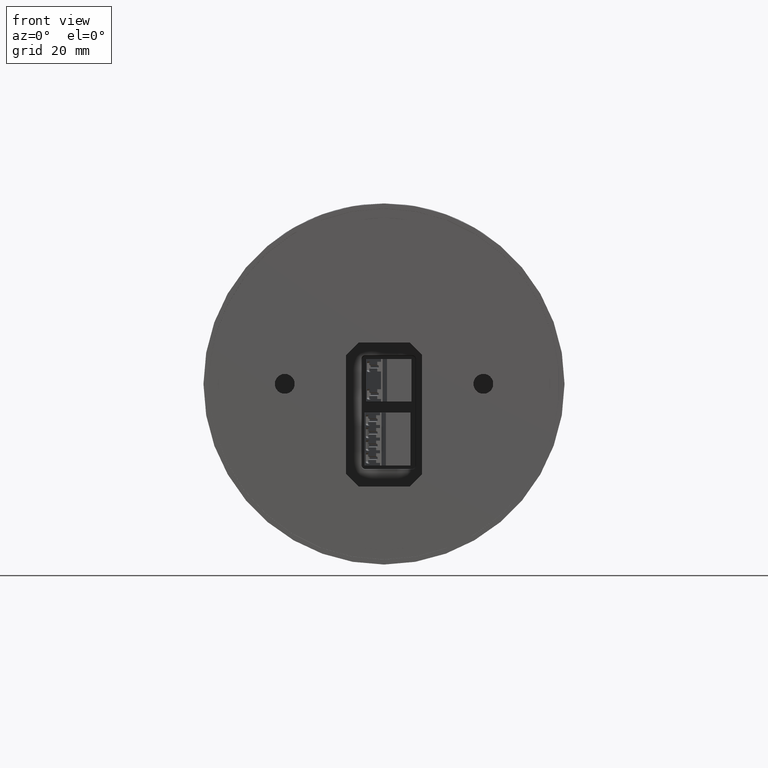
[diagram: clean part render]
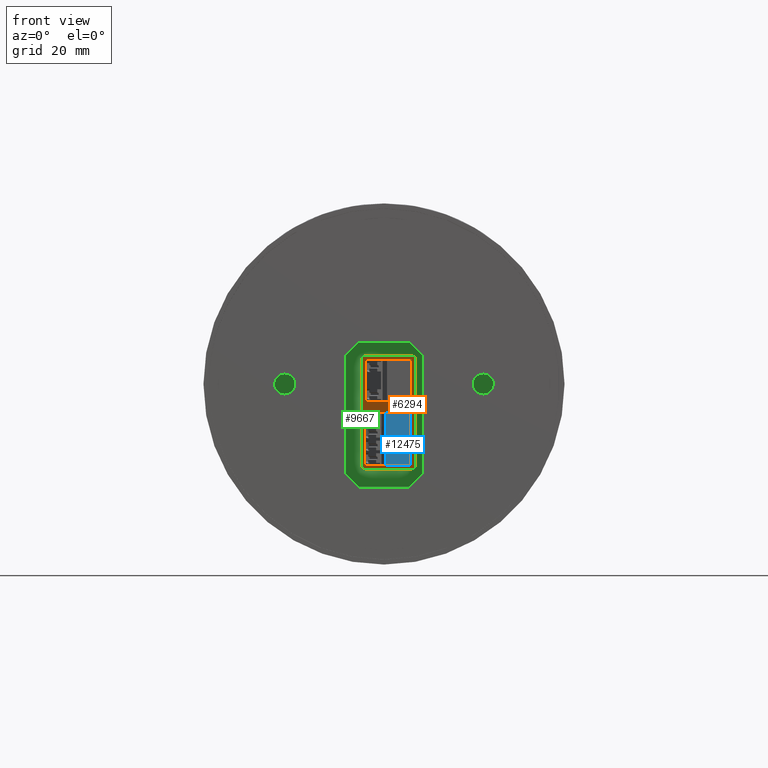
[diagram: same view with three faces highlighted in distinct colors, each labeled with its STEP entity id]
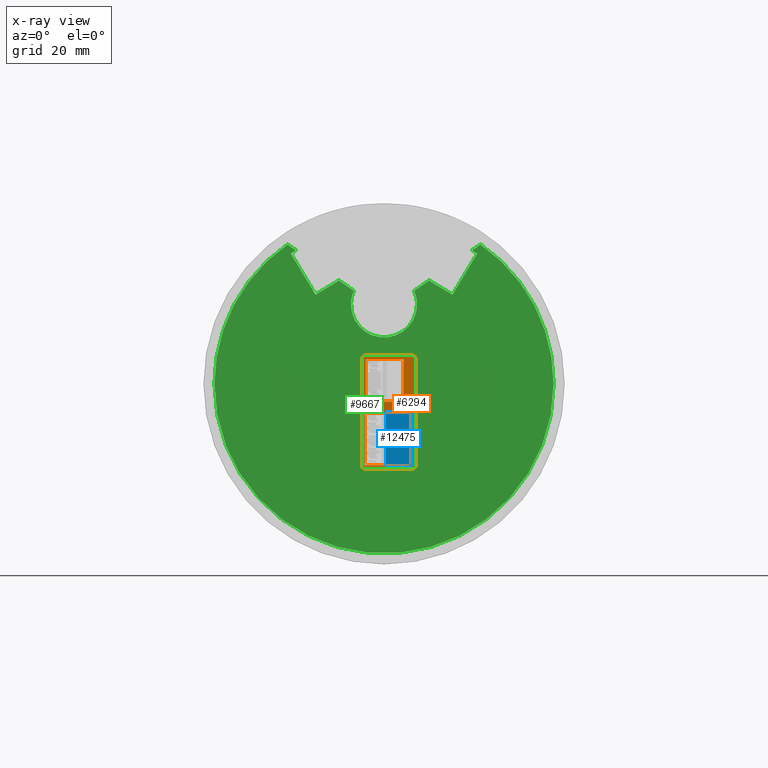
[diagram: x-ray of the same camera — body ghosted, the three highlighted faces saturated]
A machine part, front view with three faces highlighted in distinct colors.
The next image is the same camera in x-ray (body ghosted, the three faces saturated) — at least one of them is partly hidden behind the body in this view.
Their STEP definitions:

[orange] entity #6294 — the highlighted planar face has unit normal (0, -1, 0).
#173 = LINE ( 'NONE', #8453, #13082 ) ;
#302 = CARTESIAN_POINT ( 'NONE',  ( -6.119682230168980830, 23.49999400000000094, -22.52029140314990130 ) ) ;
#399 = ORIENTED_EDGE ( 'NONE', *, *, #11382, .T. ) ;
#406 = VERTEX_POINT ( 'NONE', #302 ) ;
#443 = DIRECTION ( 'NONE',  ( 1.000000000000000000, 0.000000000000000000, -8.105816544989190508E-16 ) ) ;
#446 =( BOUNDED_CURVE ( )  B_SPLINE_CURVE ( 3, ( #683, #5022, #8053, #11439 ),
 .UNSPECIFIED., .F., .T. ) 
 B_SPLINE_CURVE_WITH_KNOTS ( ( 4, 4 ),
 ( 2.356803477777964950, 3.926381829401630164 ),
 .UNSPECIFIED. ) 
 CURVE ( )  GEOMETRIC_REPRESENTATION_ITEM ( )  RATIONAL_B_SPLINE_CURVE ( ( 1.000000000000000000, 0.8050248461936609923, 0.8050248461936609923, 1.000000000000000000 ) ) 
 REPRESENTATION_ITEM ( '' )  );
#456 = CARTESIAN_POINT ( 'NONE',  ( 8.719682230168979586, 23.49999400000000094, -23.10586857305252195 ) ) ;
#506 = EDGE_LOOP ( 'NONE', ( #11335, #4915, #9680, #6970 ) ) ;
#592 = CARTESIAN_POINT ( 'NONE',  ( -3.798276963500004655, 23.49999400000000094, -4.909999995300010411 ) ) ;
#683 = CARTESIAN_POINT ( 'NONE',  ( -6.119682230168980830, 23.49999400000000094, -22.52029140314990130 ) ) ;
#714 = CARTESIAN_POINT ( 'NONE',  ( 7.720291403149889931, 23.49999400000000094, 7.819682230168989889 ) ) ;
#786 = CARTESIAN_POINT ( 'NONE',  ( 8.719682230168997350, 23.49999400000002225, 7.405868573052506676 ) ) ;
#845 = ORIENTED_EDGE ( 'NONE', *, *, #4101, .T. ) ;
#982 = CARTESIAN_POINT ( 'NONE',  ( -3.798276963500004655, 23.49999400000000094, 6.909999989900000195 ) ) ;
#1405 = LINE ( 'NONE', #10649, #4709 ) ;
#1528 = VECTOR ( 'NONE', #7857, 1000.000000000000000 ) ;
#1665 = CARTESIAN_POINT ( 'NONE',  ( -5.705868573052503834, 23.49999400000002225, 7.819682230168994330 ) ) ;
#1853 = CARTESIAN_POINT ( 'NONE',  ( 5.048997996695069546, 23.49999400000000094, -22.60999999579999908 ) ) ;
#1902 = DIRECTION ( 'NONE',  ( 0.000000000000000000, 0.000000000000000000, -1.000000000000000000 ) ) ;
#2018 = CARTESIAN_POINT ( 'NONE',  ( 8.719682230168979586, 23.49999400000000094, 6.820291403149890463 ) ) ;
#2036 = VERTEX_POINT ( 'NONE', #7683 ) ;
#2077 = ORIENTED_EDGE ( 'NONE', *, *, #9624, .T. ) ;
#2139 = CARTESIAN_POINT ( 'NONE',  ( 5.348997995583320453, 23.49999400000000094, 6.909999997475000377 ) ) ;
#2248 = CARTESIAN_POINT ( 'NONE',  ( 8.719682230168979586, 23.49999400000000094, 6.820291403149890463 ) ) ;
#2571 = LINE ( 'NONE', #13055, #3162 ) ;
#2602 = LINE ( 'NONE', #592, #6054 ) ;
#2671 = ORIENTED_EDGE ( 'NONE', *, *, #7076, .T. ) ;
#2739 = DIRECTION ( 'NONE',  ( 0.000000000000000000, 0.000000000000000000, -1.000000000000000000 ) ) ;
#2833 = ORIENTED_EDGE ( 'NONE', *, *, #8622, .T. ) ;
#2928 = CARTESIAN_POINT ( 'NONE',  ( 8.305868573052517689, 23.49999400000002225, 7.819682230168999659 ) ) ;
#2949 = VERTEX_POINT ( 'NONE', #7526 ) ;
#2967 = CARTESIAN_POINT ( 'NONE',  ( 7.720291403149889931, 23.49999400000000094, -23.51968223016899984 ) ) ;
#3120 = EDGE_CURVE ( 'NONE', #5631, #12001, #2571, .T. ) ;
#3162 = VECTOR ( 'NONE', #3604, 1000.000000000000000 ) ;
#3203 = EDGE_CURVE ( 'NONE', #4816, #6198, #11052, .T. ) ;
#3441 = CARTESIAN_POINT ( 'NONE',  ( -5.050003998654150728, 23.49999400000000094, -4.909999998825000489 ) ) ;
#3576 = DIRECTION ( 'NONE',  ( 0.000000000000000000, -1.000000000000000000, 0.000000000000000000 ) ) ;
#3604 = DIRECTION ( 'NONE',  ( 0.000000000000000000, 0.000000000000000000, -1.000000000000000000 ) ) ;
#3608 = LINE ( 'NONE', #3673, #9219 ) ;
#3640 = CARTESIAN_POINT ( 'NONE',  ( -32.50000000000000000, 23.49999400000000094, 16.10000000000000142 ) ) ;
#3649 = ORIENTED_EDGE ( 'NONE', *, *, #6929, .T. ) ;
#3656 = LINE ( 'NONE', #11109, #1528 ) ;
#3673 = CARTESIAN_POINT ( 'NONE',  ( -3.798276963500004655, 23.49999400000000094, -7.909999999499999213 ) ) ;
#3744 = CARTESIAN_POINT ( 'NONE',  ( -5.050003994616599989, 23.49999400000000094, -6.949999999999999289 ) ) ;
#3775 = FACE_OUTER_BOUND ( 'NONE', #6252, .T. ) ;
#3896 = DIRECTION ( 'NONE',  ( -1.000000000000000000, 0.000000000000000000, 0.000000000000000000 ) ) ;
#3933 = CARTESIAN_POINT ( 'NONE',  ( -5.120291403149890286, 23.49999400000000094, 7.819682230168989889 ) ) ;
#4100 = CARTESIAN_POINT ( 'NONE',  ( -5.120291403149890286, 23.49999400000000094, -23.51968223016895010 ) ) ;
#4101 = EDGE_CURVE ( 'NONE', #7596, #7804, #2602, .T. ) ;
#4120 = CARTESIAN_POINT ( 'NONE',  ( 8.305868573052496373, 23.49999400000000094, -23.51968223016896786 ) ) ;
#4277 = VERTEX_POINT ( 'NONE', #4100 ) ;
#4414 = CARTESIAN_POINT ( 'NONE',  ( -6.119682230168980830, 23.49999400000000094, 6.820291403149899345 ) ) ;
#4540 = VERTEX_POINT ( 'NONE', #6674 ) ;
#4561 = ORIENTED_EDGE ( 'NONE', *, *, #3203, .T. ) ;
#4600 = CARTESIAN_POINT ( 'NONE',  ( -5.350003997542399858, 23.49999400000000094, -7.909999999874999688 ) ) ;
#4635 = EDGE_CURVE ( 'NONE', #8047, #13354, #7258, .T. ) ;
#4709 = VECTOR ( 'NONE', #8582, 1000.000000000000000 ) ;
#4763 = ORIENTED_EDGE ( 'NONE', *, *, #13565, .T. ) ;
#4771 = DIRECTION ( 'NONE',  ( -1.182473768451757848E-16, 0.000000000000000000, 1.000000000000000000 ) ) ;
#4816 = VERTEX_POINT ( 'NONE', #11700 ) ;
#4915 = ORIENTED_EDGE ( 'NONE', *, *, #3120, .T. ) ;
#4932 = CARTESIAN_POINT ( 'NONE',  ( 8.719682230168988468, 23.49999400000000094, -22.52029140314990130 ) ) ;
#5022 = CARTESIAN_POINT ( 'NONE',  ( -6.119682230168987935, 23.49999400000005423, -23.10586857305252195 ) ) ;
#5139 = VERTEX_POINT ( 'NONE', #4600 ) ;
#5144 = VECTOR ( 'NONE', #4771, 1000.000000000000000 ) ;
#5578 = DIRECTION ( 'NONE',  ( 1.000000000000000000, 0.000000000000000000, 0.000000000000000000 ) ) ;
#5631 = VERTEX_POINT ( 'NONE', #9879 ) ;
#5806 = CARTESIAN_POINT ( 'NONE',  ( 8.719682230168979586, 23.49999400000000094, 6.820291403149890463 ) ) ;
#6054 = VECTOR ( 'NONE', #3896, 1000.000000000000000 ) ;
#6115 = CARTESIAN_POINT ( 'NONE',  ( 5.348997987982899716, 23.49999400000000094, -6.949999999999999289 ) ) ;
#6198 = VERTEX_POINT ( 'NONE', #2248 ) ;
#6252 = EDGE_LOOP ( 'NONE', ( #3649, #2671, #2077, #8757, #11494, #399, #9082, #4561 ) ) ;
#6271 = VECTOR ( 'NONE', #5578, 1000.000000000000000 ) ;
#6294 = ADVANCED_FACE ( 'NONE', ( #8040, #7902, #3775 ), #10949, .T. ) ;
#6309 = VECTOR ( 'NONE', #1902, 1000.000000000000000 ) ;
#6419 = ORIENTED_EDGE ( 'NONE', *, *, #4635, .T. ) ;
#6566 = EDGE_CURVE ( 'NONE', #9688, #406, #173, .T. ) ;
#6674 = CARTESIAN_POINT ( 'NONE',  ( -5.120291403149890286, 23.49999400000000094, 7.819682230168989889 ) ) ;
#6929 = EDGE_CURVE ( 'NONE', #6198, #2036, #12849, .T. ) ;
#6970 = ORIENTED_EDGE ( 'NONE', *, *, #8003, .T. ) ;
#7076 = EDGE_CURVE ( 'NONE', #2036, #4540, #1405, .T. ) ;
#7258 = LINE ( 'NONE', #982, #6271 ) ;
#7526 = CARTESIAN_POINT ( 'NONE',  ( -5.350003997542399858, 23.49999400000000094, -22.60999999579999908 ) ) ;
#7596 = VERTEX_POINT ( 'NONE', #9032 ) ;
#7683 = CARTESIAN_POINT ( 'NONE',  ( 7.720291403149889931, 23.49999400000000094, 7.819682230168989889 ) ) ;
#7804 = VERTEX_POINT ( 'NONE', #3441 ) ;
#7857 = DIRECTION ( 'NONE',  ( 0.000000000000000000, 0.000000000000000000, 1.000000000000000000 ) ) ;
#7873 = DIRECTION ( 'NONE',  ( 1.000000000000000000, 0.000000000000000000, 0.000000000000000000 ) ) ;
#7902 = FACE_BOUND ( 'NONE', #11907, .T. ) ;
#7920 =( BOUNDED_CURVE ( )  B_SPLINE_CURVE ( 3, ( #9363, #4120, #456, #4932 ),
 .UNSPECIFIED., .F., .F. ) 
 B_SPLINE_CURVE_WITH_KNOTS ( ( 4, 4 ),
 ( 2.356803477778000033, 3.926381829401670132 ),
 .UNSPECIFIED. ) 
 CURVE ( )  GEOMETRIC_REPRESENTATION_ITEM ( )  RATIONAL_B_SPLINE_CURVE ( ( 1.000000000000000000, 0.8050248461936609923, 0.8050248461936609923, 1.000000000000000000 ) ) 
 REPRESENTATION_ITEM ( '' )  );
#8003 = EDGE_CURVE ( 'NONE', #2949, #5139, #3656, .T. ) ;
#8040 = FACE_BOUND ( 'NONE', #506, .T. ) ;
#8047 = VERTEX_POINT ( 'NONE', #11239 ) ;
#8053 = CARTESIAN_POINT ( 'NONE',  ( -5.705868573052497617, 23.49999400000005423, -23.51968223016896786 ) ) ;
#8103 = EDGE_CURVE ( 'NONE', #406, #4277, #446, .T. ) ;
#8453 = CARTESIAN_POINT ( 'NONE',  ( -6.119682230168980830, 23.49999400000000094, -22.52029140314990130 ) ) ;
#8582 = DIRECTION ( 'NONE',  ( -1.000000000000000000, 0.000000000000000000, 1.350969424164864016E-16 ) ) ;
#8622 = EDGE_CURVE ( 'NONE', #7804, #8047, #13329, .T. ) ;
#8757 = ORIENTED_EDGE ( 'NONE', *, *, #6566, .T. ) ;
#9032 = CARTESIAN_POINT ( 'NONE',  ( 5.348997995583320453, 23.49999400000000094, -4.909999998825000489 ) ) ;
#9041 = CARTESIAN_POINT ( 'NONE',  ( -6.119682230168983494, 23.49999400000002225, 7.405868573052513781 ) ) ;
#9082 = ORIENTED_EDGE ( 'NONE', *, *, #12647, .T. ) ;
#9219 = VECTOR ( 'NONE', #7873, 1000.000000000000000 ) ;
#9308 = AXIS2_PLACEMENT_3D ( 'NONE', #3640, #3576, #2739 ) ;
#9363 = CARTESIAN_POINT ( 'NONE',  ( 7.720291403149889931, 23.49999400000000094, -23.51968223016899984 ) ) ;
#9431 = EDGE_CURVE ( 'NONE', #5139, #5631, #3608, .T. ) ;
#9481 = DIRECTION ( 'NONE',  ( -5.912368842258789240E-17, 0.000000000000000000, -1.000000000000000000 ) ) ;
#9570 = DIRECTION ( 'NONE',  ( -1.000000000000000000, 0.000000000000000000, 0.000000000000000000 ) ) ;
#9624 = EDGE_CURVE ( 'NONE', #4540, #9688, #13652, .T. ) ;
#9680 = ORIENTED_EDGE ( 'NONE', *, *, #12120, .T. ) ;
#9688 = VERTEX_POINT ( 'NONE', #4414 ) ;
#9713 = CARTESIAN_POINT ( 'NONE',  ( -3.798276963500004655, 23.49999400000000094, -22.60999998319999804 ) ) ;
#9879 = CARTESIAN_POINT ( 'NONE',  ( 5.048997996695069546, 23.49999400000000094, -7.909999999875010346 ) ) ;
#9952 = DIRECTION ( 'NONE',  ( 0.000000000000000000, 0.000000000000000000, 1.000000000000000000 ) ) ;
#10365 = VECTOR ( 'NONE', #9570, 1000.000000000000000 ) ;
#10649 = CARTESIAN_POINT ( 'NONE',  ( -5.120291403149890286, 23.49999400000000094, 7.819682230168989889 ) ) ;
#10949 = PLANE ( 'NONE',  #9308 ) ;
#11010 = VECTOR ( 'NONE', #9952, 1000.000000000000000 ) ;
#11052 = LINE ( 'NONE', #5806, #5144 ) ;
#11109 = CARTESIAN_POINT ( 'NONE',  ( -5.350003990169589940, 23.49999400000000094, -6.949999999999999289 ) ) ;
#11185 = CARTESIAN_POINT ( 'NONE',  ( -6.119682230168980830, 23.49999400000000094, 6.820291403149899345 ) ) ;
#11239 = CARTESIAN_POINT ( 'NONE',  ( -5.050003998654150728, 23.49999400000000094, 6.909999997475000377 ) ) ;
#11335 = ORIENTED_EDGE ( 'NONE', *, *, #9431, .T. ) ;
#11358 = LINE ( 'NONE', #6115, #6309 ) ;
#11382 = EDGE_CURVE ( 'NONE', #4277, #11984, #12225, .T. ) ;
#11439 = CARTESIAN_POINT ( 'NONE',  ( -5.120291403149890286, 23.49999400000000094, -23.51968223016895010 ) ) ;
#11494 = ORIENTED_EDGE ( 'NONE', *, *, #8103, .T. ) ;
#11698 = VECTOR ( 'NONE', #443, 1000.000000000000000 ) ;
#11700 = CARTESIAN_POINT ( 'NONE',  ( 8.719682230168988468, 23.49999400000000094, -22.52029140314990130 ) ) ;
#11907 = EDGE_LOOP ( 'NONE', ( #845, #2833, #6419, #4763 ) ) ;
#11984 = VERTEX_POINT ( 'NONE', #2967 ) ;
#12001 = VERTEX_POINT ( 'NONE', #1853 ) ;
#12034 = CARTESIAN_POINT ( 'NONE',  ( 7.720291403149889931, 23.49999400000000094, -23.51968223016899984 ) ) ;
#12120 = EDGE_CURVE ( 'NONE', #12001, #2949, #12750, .T. ) ;
#12225 = LINE ( 'NONE', #12034, #11698 ) ;
#12647 = EDGE_CURVE ( 'NONE', #11984, #4816, #7920, .T. ) ;
#12750 = LINE ( 'NONE', #9713, #10365 ) ;
#12849 =( BOUNDED_CURVE ( )  B_SPLINE_CURVE ( 3, ( #2018, #786, #2928, #714 ),
 .UNSPECIFIED., .F., .F. ) 
 B_SPLINE_CURVE_WITH_KNOTS ( ( 4, 4 ),
 ( 2.356803477777949851, 3.926381829401630164 ),
 .UNSPECIFIED. ) 
 CURVE ( )  GEOMETRIC_REPRESENTATION_ITEM ( )  RATIONAL_B_SPLINE_CURVE ( ( 1.000000000000000000, 0.8050248461936579947, 0.8050248461936579947, 1.000000000000000000 ) ) 
 REPRESENTATION_ITEM ( '' )  );
#13055 = CARTESIAN_POINT ( 'NONE',  ( 5.048997992429919535, 23.49999400000000094, -6.949999999999999289 ) ) ;
#13082 = VECTOR ( 'NONE', #9481, 1000.000000000000000 ) ;
#13329 = LINE ( 'NONE', #3744, #11010 ) ;
#13354 = VERTEX_POINT ( 'NONE', #2139 ) ;
#13565 = EDGE_CURVE ( 'NONE', #13354, #7596, #11358, .T. ) ;
#13652 =( BOUNDED_CURVE ( )  B_SPLINE_CURVE ( 3, ( #3933, #1665, #9041, #11185 ),
 .UNSPECIFIED., .F., .T. ) 
 B_SPLINE_CURVE_WITH_KNOTS ( ( 4, 4 ),
 ( 2.356803477777960065, 3.926381829401630164 ),
 .UNSPECIFIED. ) 
 CURVE ( )  GEOMETRIC_REPRESENTATION_ITEM ( )  RATIONAL_B_SPLINE_CURVE ( ( 1.000000000000000000, 0.8050248461936599931, 0.8050248461936599931, 1.000000000000000000 ) ) 
 REPRESENTATION_ITEM ( '' )  );

[blue] entity #12475 — the highlighted planar face has unit normal (0, -1, 0).
#58 = PLANE ( 'NONE',  #680 ) ;
#648 = VECTOR ( 'NONE', #13383, 1000.000000000000000 ) ;
#680 = AXIS2_PLACEMENT_3D ( 'NONE', #5227, #1022, #1093 ) ;
#1022 = DIRECTION ( 'NONE',  ( 0.000000000000000000, -1.000000000000000000, 0.000000000000000000 ) ) ;
#1028 = EDGE_CURVE ( 'NONE', #13005, #9035, #7998, .T. ) ;
#1093 = DIRECTION ( 'NONE',  ( 0.000000000000000000, 0.000000000000000000, -1.000000000000000000 ) ) ;
#1133 = CARTESIAN_POINT ( 'NONE',  ( 0.5316260013453200095, 10.59999999999999964, -7.910000000000000142 ) ) ;
#1670 = ORIENTED_EDGE ( 'NONE', *, *, #13474, .F. ) ;
#2316 = CARTESIAN_POINT ( 'NONE',  ( 7.349999999999999645, 10.59999999999999964, -7.910000000000000142 ) ) ;
#2502 = VECTOR ( 'NONE', #3141, 1000.000000000000000 ) ;
#2530 = VERTEX_POINT ( 'NONE', #2316 ) ;
#2865 = DIRECTION ( 'NONE',  ( -1.000000000000000000, 0.000000000000000000, 0.000000000000000000 ) ) ;
#3141 = DIRECTION ( 'NONE',  ( 0.000000000000000000, 0.000000000000000000, -1.000000000000000000 ) ) ;
#3894 = CARTESIAN_POINT ( 'NONE',  ( 0.9999979999999999425, 10.59999999999999964, -22.61000000000000298 ) ) ;
#3988 = DIRECTION ( 'NONE',  ( 1.000000000000000000, 0.000000000000000000, 0.000000000000000000 ) ) ;
#4520 = CARTESIAN_POINT ( 'NONE',  ( 7.349999999999999645, 10.59999999999999964, -15.25999999999999979 ) ) ;
#4898 = LINE ( 'NONE', #13448, #6968 ) ;
#5227 = CARTESIAN_POINT ( 'NONE',  ( 7.349999999999999645, 10.59999999999999964, -7.910000000000000142 ) ) ;
#5229 = EDGE_CURVE ( 'NONE', #7167, #9035, #11415, .T. ) ;
#5266 = ORIENTED_EDGE ( 'NONE', *, *, #1028, .T. ) ;
#5551 = LINE ( 'NONE', #4520, #2502 ) ;
#6715 = EDGE_CURVE ( 'NONE', #2530, #7167, #5551, .T. ) ;
#6840 = CARTESIAN_POINT ( 'NONE',  ( 7.349999999999999645, 10.59999999999999964, -22.61000000000000298 ) ) ;
#6935 = VECTOR ( 'NONE', #2865, 1000.000000000000000 ) ;
#6968 = VECTOR ( 'NONE', #3988, 1000.000000000000000 ) ;
#7167 = VERTEX_POINT ( 'NONE', #6840 ) ;
#7998 = LINE ( 'NONE', #12211, #648 ) ;
#8023 = CARTESIAN_POINT ( 'NONE',  ( 0.5316260013453200095, 10.59999999999999964, -22.61000000000000298 ) ) ;
#8327 = FACE_OUTER_BOUND ( 'NONE', #13587, .T. ) ;
#9035 = VERTEX_POINT ( 'NONE', #8023 ) ;
#9692 = ORIENTED_EDGE ( 'NONE', *, *, #6715, .F. ) ;
#11415 = LINE ( 'NONE', #3894, #6935 ) ;
#12211 = CARTESIAN_POINT ( 'NONE',  ( 0.5316259999999929375, 10.59999999999999964, -15.25999999999999979 ) ) ;
#12213 = ORIENTED_EDGE ( 'NONE', *, *, #5229, .F. ) ;
#12475 = ADVANCED_FACE ( 'NONE', ( #8327 ), #58, .T. ) ;
#13005 = VERTEX_POINT ( 'NONE', #1133 ) ;
#13383 = DIRECTION ( 'NONE',  ( 0.000000000000000000, 0.000000000000000000, -1.000000000000000000 ) ) ;
#13448 = CARTESIAN_POINT ( 'NONE',  ( 0.9999979999999999425, 10.59999999999999964, -7.910000000000000142 ) ) ;
#13474 = EDGE_CURVE ( 'NONE', #13005, #2530, #4898, .T. ) ;
#13587 = EDGE_LOOP ( 'NONE', ( #1670, #5266, #12213, #9692 ) ) ;

[green] entity #9667 — the highlighted planar face has unit normal (0, -1, 0).
#23 = EDGE_CURVE ( 'NONE', #1785, #11284, #11717, .T. ) ;
#37 = CARTESIAN_POINT ( 'NONE',  ( 21.34736377045681976, 18.19999940451927145, 28.69069098005243745 ) ) ;
#76 = PLANE ( 'NONE',  #8533 ) ;
#101 = CARTESIAN_POINT ( 'NONE',  ( 21.92124207504169320, 18.19999984654095471, 29.64477817166800122 ) ) ;
#137 = CARTESIAN_POINT ( 'NONE',  ( 8.852381154237628280, 18.19999999999999929, 6.952990327218540045 ) ) ;
#165 = CARTESIAN_POINT ( 'NONE',  ( 23.18925427739085521, 18.19999683517986355, 31.75435254934617291 ) ) ;
#235 = CARTESIAN_POINT ( 'NONE',  ( 20.32648396742256480, 18.20000194010543382, 26.99176631024883477 ) ) ;
#298 = ORIENTED_EDGE ( 'NONE', *, *, #1201, .F. ) ;
#334 = VERTEX_POINT ( 'NONE', #573 ) ;
#344 = CARTESIAN_POINT ( 'NONE',  ( 7.852990327218528854, 18.19999999999999929, -23.65238115423760235 ) ) ;
#361 = CARTESIAN_POINT ( 'NONE',  ( -13.53911052853240093, 18.19999999999999929, 28.01518636579680077 ) ) ;
#398 = CARTESIAN_POINT ( 'NONE',  ( 25.70635032459265190, 18.19999999999999929, 35.94027894503269493 ) ) ;
#475 = CARTESIAN_POINT ( 'NONE',  ( -19.94804117055045012, 18.19999999999999929, 26.36308647067199828 ) ) ;
#530 = CIRCLE ( 'NONE', #9549, 46.96945596273229739 ) ;
#562 = CARTESIAN_POINT ( 'NONE',  ( -18.97880101419805143, 18.19999999999999929, 24.75010854514399838 ) ) ;
#573 = CARTESIAN_POINT ( 'NONE',  ( -26.71172798787065261, 18.19999999999999929, 38.63435493621015127 ) ) ;
#584 = EDGE_LOOP ( 'NONE', ( #12557, #12262, #4042, #2920, #10702, #11428, #8997, #8022 ) ) ;
#798 = CARTESIAN_POINT ( 'NONE',  ( 12.00842285757649996, 18.19999999999999929, 28.36096847587889869 ) ) ;
#822 = CARTESIAN_POINT ( 'NONE',  ( -11.73743127329108482, 18.19998957392344252, 28.17155613865668329 ) ) ;
#870 = CARTESIAN_POINT ( 'NONE',  ( 9.234885732432594807, 18.20000590168481835, 26.41758154575246209 ) ) ;
#875 = CARTESIAN_POINT ( 'NONE',  ( 46.96945596273229739, 18.19999999999999929, 5.925591757886269678E-16 ) ) ;
#895 = CARTESIAN_POINT ( 'NONE',  ( -9.129645381259010151, 18.19999999999999929, 22.00000000000000000 ) ) ;
#914 = CARTESIAN_POINT ( 'NONE',  ( -6.252381154237619754, 18.19999999999999929, 6.952990327218540045 ) ) ;
#938 = VERTEX_POINT ( 'NONE', #4971 ) ;
#978 = CARTESIAN_POINT ( 'NONE',  ( 12.44953003593179908, 18.19999999999999929, 28.66925359543964902 ) ) ;
#1004 = CARTESIAN_POINT ( 'NONE',  ( -24.87317649246117668, 18.20015683995019273, 36.71360537823191805 ) ) ;
#1005 = CARTESIAN_POINT ( 'NONE',  ( 10.12126180004295684, 18.20000669497570911, 27.03994829642454434 ) ) ;
#1035 = VECTOR ( 'NONE', #3371, 1000.000000000000000 ) ;
#1048 = CARTESIAN_POINT ( 'NONE',  ( -5.252990327218530098, 18.19999999999999929, 7.952381154237629701 ) ) ;
#1067 = CARTESIAN_POINT ( 'NONE',  ( 21.14470741812474586, 18.20010708558275425, 28.35369744773529632 ) ) ;
#1074 = CARTESIAN_POINT ( 'NONE',  ( 9.137156504220838471, 18.19991235224022219, 26.34886402035087016 ) ) ;
#1136 = CARTESIAN_POINT ( 'NONE',  ( 23.22648389573767957, 18.20003432159354162, 31.81627517499103419 ) ) ;
#1201 = EDGE_CURVE ( 'NONE', #8429, #6571, #2161, .T. ) ;
#1203 = CARTESIAN_POINT ( 'NONE',  ( 23.37929238239128793, 18.19965885620706914, 32.07038084902463737 ) ) ;
#1269 = CARTESIAN_POINT ( 'NONE',  ( 20.98519106874522677, 18.19995500065758165, 28.08829687377727424 ) ) ;
#1326 =( BOUNDED_CURVE ( )  B_SPLINE_CURVE ( 3, ( #2642, #4574, #12154, #7671 ),
 .UNSPECIFIED., .F., .F. ) 
 B_SPLINE_CURVE_WITH_KNOTS ( ( 4, 4 ),
 ( 2.356803477777955180, 3.926381829401635049 ),
 .UNSPECIFIED. ) 
 CURVE ( )  GEOMETRIC_REPRESENTATION_ITEM ( )  RATIONAL_B_SPLINE_CURVE ( ( 1.000000000000000000, 0.8050248461936579947, 0.8050248461936579947, 1.000000000000000000 ) ) 
 REPRESENTATION_ITEM ( '' )  );
#1357 = VERTEX_POINT ( 'NONE', #2682 ) ;
#1361 = CARTESIAN_POINT ( 'NONE',  ( -25.78594801784174706, 18.19999999999999929, 36.07281636037829742 ) ) ;
#1435 = CARTESIAN_POINT ( 'NONE',  ( 25.54699091602680028, 18.19999999999999929, 35.67532191113510009 ) ) ;
#1448 = EDGE_CURVE ( 'NONE', #334, #1357, #5300, .T. ) ;
#1482 = CIRCLE ( 'NONE', #7632, 9.129645381259010151 ) ;
#1491 = EDGE_CURVE ( 'NONE', #10723, #11167, #10553, .T. ) ;
#1553 = B_SPLINE_CURVE_WITH_KNOTS ( 'NONE', 3,
 ( #11354, #4104, #7277, #6307, #9208, #1074, #13428, #7069, #6109, #5278, #11493, #12597, #870, #6244, #11289, #1897, #10253, #5076, #1005, #11558, #5213, #13358, #798 ),
 .UNSPECIFIED., .F., .F.,
 ( 4, 2, 2, 1, 1, 1, 1, 2, 2, 1, 1, 1, 2, 2, 4 ),
 ( 0.000000000000000000, 0.1249999999999381606, 0.1874999999999083788, 0.2187499999998941680, 0.2343749999998882561, 0.2421874999998848976, 0.2460937499998832323, 0.2480468749998823996, 0.2499999999998815392, 0.3749999999998945843, 0.4374999999999011346, 0.4687499999999036882, 0.4843749999999056310, 0.4999999999999076294, 1.000000000000000000 ),
 .UNSPECIFIED. ) ;
#1554 = VERTEX_POINT ( 'NONE', #2108 ) ;
#1598 = CARTESIAN_POINT ( 'NONE',  ( -17.89195342643084885, 18.19999999999999929, 25.40242704071130220 ) ) ;
#1612 = EDGE_CURVE ( 'NONE', #5709, #3339, #7420, .T. ) ;
#1614 = CARTESIAN_POINT ( 'NONE',  ( 23.96259144591836687, 18.20000006928351866, 33.04019190058254907 ) ) ;
#1743 = EDGE_CURVE ( 'NONE', #4671, #4177, #13516, .T. ) ;
#1756 = CARTESIAN_POINT ( 'NONE',  ( 19.23615329603159907, 18.19999999999999929, 25.17828683772854959 ) ) ;
#1785 = VERTEX_POINT ( 'NONE', #8031 ) ;
#1793 = CARTESIAN_POINT ( 'NONE',  ( 25.40545302592035171, 18.19999999999999929, 36.34240678865025131 ) ) ;
#1823 = EDGE_CURVE ( 'NONE', #2510, #1554, #9000, .T. ) ;
#1897 = CARTESIAN_POINT ( 'NONE',  ( 9.887684868954064399, 18.20000685557366182, 26.87610009070727202 ) ) ;
#1938 = DIRECTION ( 'NONE',  ( 1.000000000000000000, 0.000000000000000000, 0.000000000000000000 ) ) ;
#1988 = CARTESIAN_POINT ( 'NONE',  ( -9.421329962682143844, 18.20000743265729071, 26.54860789862032533 ) ) ;
#2007 = DIRECTION ( 'NONE',  ( 1.000000000000000000, 0.000000000000000000, 0.000000000000000000 ) ) ;
#2031 = B_SPLINE_CURVE_WITH_KNOTS ( 'NONE', 3,
 ( #1435, #9849, #398, #13027 ),
 .UNSPECIFIED., .F., .F.,
 ( 4, 4 ),
 ( 0.01844501143000585111, 0.01890879447683044973 ),
 .UNSPECIFIED. ) ;
#2072 = ORIENTED_EDGE ( 'NONE', *, *, #1743, .F. ) ;
#2074 = CARTESIAN_POINT ( 'NONE',  ( -6.252381154237622418, 18.19999999999998508, 7.538567497121151817 ) ) ;
#2095 = CARTESIAN_POINT ( 'NONE',  ( 20.35579589148701274, 18.19999048478171488, 27.04054138977603827 ) ) ;
#2108 = CARTESIAN_POINT ( 'NONE',  ( -6.252381154237619754, 18.19999999999999929, -22.65299032721849670 ) ) ;
#2126 = CARTESIAN_POINT ( 'NONE',  ( -25.13606015877754984, 18.19999999999999929, 34.99217742560114885 ) ) ;
#2157 = CARTESIAN_POINT ( 'NONE',  ( 21.53096678324541102, 18.19999944963057104, 28.99592636668199219 ) ) ;
#2161 = B_SPLINE_CURVE_WITH_KNOTS ( 'NONE', 3,
 ( #6463, #2126, #10543, #10683, #5101, #9302, #13527, #4062, #475, #13101 ),
 .UNSPECIFIED., .F., .F.,
 ( 4, 3, 3, 4 ),
 ( 0.000000000000000000, 0.003783016340228689996, 0.007566032686116370629, 0.01321139526648761921 ),
 .UNSPECIFIED. ) ;
#2203 = CARTESIAN_POINT ( 'NONE',  ( 8.438567497121145067, 18.20000000000000639, 7.952381154237641248 ) ) ;
#2216 = VECTOR ( 'NONE', #10122, 1000.000000000000000 ) ;
#2231 = CARTESIAN_POINT ( 'NONE',  ( 20.29889219547189327, 18.20000498727571170, 26.94585639913010056 ) ) ;
#2302 = CARTESIAN_POINT ( 'NONE',  ( 23.78333410237012657, 18.20005208656473172, 32.74215856654015511 ) ) ;
#2333 = CARTESIAN_POINT ( 'NONE',  ( 24.74301191096089880, 18.20008267556102410, 36.79968786356007371 ) ) ;
#2337 = VERTEX_POINT ( 'NONE', #9215 ) ;
#2373 = CARTESIAN_POINT ( 'NONE',  ( 23.19841509444422201, 18.19999919802717514, 31.76958965704156768 ) ) ;
#2444 = CARTESIAN_POINT ( 'NONE',  ( 23.94633845024617358, 18.20000083089360032, 33.01316842731264245 ) ) ;
#2510 = VERTEX_POINT ( 'NONE', #7624 ) ;
#2519 = CARTESIAN_POINT ( 'NONE',  ( 25.34880592572575608, 18.20089708987351429, 35.34580908894484708 ) ) ;
#2585 = ORIENTED_EDGE ( 'NONE', *, *, #7703, .F. ) ;
#2587 = CARTESIAN_POINT ( 'NONE',  ( 25.24421030923643983, 18.20073392708626869, 35.17185581788383075 ) ) ;
#2642 = CARTESIAN_POINT ( 'NONE',  ( -5.252990327218530098, 18.19999999999999929, -23.65238115423760235 ) ) ;
#2682 = CARTESIAN_POINT ( 'NONE',  ( -24.40644512719750026, 18.19999999999999929, 37.02226927866560402 ) ) ;
#2854 = VECTOR ( 'NONE', #7060, 1000.000000000000000 ) ;
#2875 = EDGE_CURVE ( 'NONE', #13379, #334, #530, .T. ) ;
#2890 = CIRCLE ( 'NONE', #9944, 46.96945596273229739 ) ;
#2917 = CARTESIAN_POINT ( 'NONE',  ( 12.99292816862575961, 18.19999999999999929, 28.34305128904674831 ) ) ;
#2920 = ORIENTED_EDGE ( 'NONE', *, *, #9352, .T. ) ;
#2963 = CARTESIAN_POINT ( 'NONE',  ( 8.438567497121132632, 18.20000000000000639, -23.65238115423763432 ) ) ;
#2966 = CARTESIAN_POINT ( 'NONE',  ( -11.22020190100203685, 18.19999213264537374, 27.80972311626868887 ) ) ;
#3013 = CARTESIAN_POINT ( 'NONE',  ( 19.23615329603159907, 18.19999999999999929, 25.17828683772854959 ) ) ;
#3029 = CARTESIAN_POINT ( 'NONE',  ( -9.644432443785351694, 18.20000777957098848, 26.70533228748556454 ) ) ;
#3098 = CARTESIAN_POINT ( 'NONE',  ( -8.842658258783632874, 18.19999999999998508, 26.14162761449336259 ) ) ;
#3103 = CARTESIAN_POINT ( 'NONE',  ( 24.40644660509195063, 18.20000000001035190, 37.02226830212210018 ) ) ;
#3124 = DIRECTION ( 'NONE',  ( 0.000000000000000000, 1.000000000000000000, 0.000000000000000000 ) ) ;
#3136 = CARTESIAN_POINT ( 'NONE',  ( 21.08664749304535491, 18.20010226388428975, 28.25711826077374411 ) ) ;
#3171 = DIRECTION ( 'NONE',  ( 0.000000000000000000, 0.000000000000000000, -1.000000000000000000 ) ) ;
#3199 = CARTESIAN_POINT ( 'NONE',  ( 23.21675357380090077, 18.20000862358894977, 31.80009109316365823 ) ) ;
#3254 = ORIENTED_EDGE ( 'NONE', *, *, #6485, .F. ) ;
#3270 = CARTESIAN_POINT ( 'NONE',  ( 23.56027610947553796, 18.19994739841039433, 32.37130871962307310 ) ) ;
#3293 = EDGE_CURVE ( 'NONE', #6004, #10127, #4978, .T. ) ;
#3339 = VERTEX_POINT ( 'NONE', #7439 ) ;
#3348 = CARTESIAN_POINT ( 'NONE',  ( 23.57419113293338597, 18.19999699367775392, 32.39444543285290479 ) ) ;
#3371 = DIRECTION ( 'NONE',  ( 1.000000000000000000, 0.000000000000000000, -6.938893903907230350E-16 ) ) ;
#3415 = CARTESIAN_POINT ( 'NONE',  ( 20.47861819813227058, 18.19992807700395687, 27.24493177106640118 ) ) ;
#3485 = CARTESIAN_POINT ( 'NONE',  ( 25.42461198063439554, 18.20055316351164976, 35.47185720949728704 ) ) ;
#3494 = VERTEX_POINT ( 'NONE', #11860 ) ;
#3540 = ORIENTED_EDGE ( 'NONE', *, *, #3293, .T. ) ;
#3560 = CARTESIAN_POINT ( 'NONE',  ( 25.54699091602680028, 18.19999999999999929, 35.67532191113510009 ) ) ;
#3562 = CIRCLE ( 'NONE', #10596, 46.96945596273229739 ) ;
#3681 = CARTESIAN_POINT ( 'NONE',  ( 26.08755547069245040, 18.19999999999999929, 38.19778923422214945 ) ) ;
#3696 = CARTESIAN_POINT ( 'NONE',  ( 12.44953003593179908, 18.19999999999999929, 28.66925359543964902 ) ) ;
#3810 = CARTESIAN_POINT ( 'NONE',  ( 24.83911785969175412, 18.19999999999999929, 37.32478937790094875 ) ) ;
#3944 = CARTESIAN_POINT ( 'NONE',  ( 15.16654780271749914, 18.19999999999999929, 27.03828721364720167 ) ) ;
#4042 = ORIENTED_EDGE ( 'NONE', *, *, #13500, .F. ) ;
#4062 = CARTESIAN_POINT ( 'NONE',  ( -20.91747761661524763, 18.19999999999999929, 27.97594645222579857 ) ) ;
#4080 = CARTESIAN_POINT ( 'NONE',  ( 13.53633022076150105, 18.19999999999999929, 28.01685551170020005 ) ) ;
#4103 = CARTESIAN_POINT ( 'NONE',  ( -25.33293929646489673, 18.20014433072318738, 36.39704016265478259 ) ) ;
#4104 = CARTESIAN_POINT ( 'NONE',  ( 8.560682870875943706, 18.20000000000000284, 25.94315774342666359 ) ) ;
#4110 = CARTESIAN_POINT ( 'NONE',  ( 19.15035575622010100, 18.19999999999999929, 25.03556882256654958 ) ) ;
#4132 = CARTESIAN_POINT ( 'NONE',  ( 24.55067208945594714, 18.19999999999999929, 37.12310618755899583 ) ) ;
#4144 = DIRECTION ( 'NONE',  ( 0.000000000000000000, 1.000000000000000000, 0.000000000000000000 ) ) ;
#4163 = CARTESIAN_POINT ( 'NONE',  ( 23.88120903320913513, 18.20001216816667267, 32.90488192432269443 ) ) ;
#4177 = VERTEX_POINT ( 'NONE', #13493 ) ;
#4195 = CARTESIAN_POINT ( 'NONE',  ( -12.08975535242186439, 18.20000000000000995, 28.41784240100378156 ) ) ;
#4211 = CARTESIAN_POINT ( 'NONE',  ( -46.96945596273229739, 18.19999999999999929, 6.351231274418415680E-15 ) ) ;
#4233 = CARTESIAN_POINT ( 'NONE',  ( 22.35746180507975822, 18.19999982687859585, 30.37034745077488651 ) ) ;
#4301 = CARTESIAN_POINT ( 'NONE',  ( 21.33942951918790953, 18.19999937999331507, 28.67749938512500307 ) ) ;
#4373 = CARTESIAN_POINT ( 'NONE',  ( 20.59467557972624263, 18.19982224337133303, 27.43813598622596217 ) ) ;
#4438 = ORIENTED_EDGE ( 'NONE', *, *, #11504, .F. ) ;
#4444 = CARTESIAN_POINT ( 'NONE',  ( 23.46031096675534044, 18.19969747602817378, 32.20509475675011402 ) ) ;
#4569 = B_SPLINE_CURVE_WITH_KNOTS ( 'NONE', 3,
 ( #3810, #10992, #3681, #11193 ),
 .UNSPECIFIED., .F., .F.,
 ( 4, 4 ),
 ( 0.000000000000000000, 0.002285088989321880284 ),
 .UNSPECIFIED. ) ;
#4574 = CARTESIAN_POINT ( 'NONE',  ( -5.838567497121144534, 18.20000000000002771, -23.65238115423760235 ) ) ;
#4586 = CARTESIAN_POINT ( 'NONE',  ( 23.96817405103187681, 18.19999999520378609, 33.04947402822176628 ) ) ;
#4622 = CARTESIAN_POINT ( 'NONE',  ( 8.852381154237628280, 18.19999999999999929, 2.327282651765434555E-15 ) ) ;
#4667 = CARTESIAN_POINT ( 'NONE',  ( 25.77673643890299715, 18.19999999999999929, 36.07940926145520422 ) ) ;
#4671 = VERTEX_POINT ( 'NONE', #4818 ) ;
#4818 = CARTESIAN_POINT ( 'NONE',  ( 12.00842285757649996, 18.19999999999999929, 28.36096847587889869 ) ) ;
#4971 = CARTESIAN_POINT ( 'NONE',  ( 26.71172853925980206, 18.19999999999999929, 38.63435455498054694 ) ) ;
#4978 = B_SPLINE_CURVE_WITH_KNOTS ( 'NONE', 3,
 ( #8480, #12693, #4132, #3103 ),
 .UNSPECIFIED., .F., .F.,
 ( 4, 4 ),
 ( 0.02883877942674484968, 0.02936672203856680041 ),
 .UNSPECIFIED. ) ;
#4989 = CARTESIAN_POINT ( 'NONE',  ( 18.97880101418605037, 18.19999999999999929, 24.75010854515139869 ) ) ;
#5026 = CARTESIAN_POINT ( 'NONE',  ( 8.852381154237624727, 18.20000000000000639, -23.23856749712113157 ) ) ;
#5049 = CARTESIAN_POINT ( 'NONE',  ( 14.07973608136306076, 18.19999999999999929, 27.69066607904614941 ) ) ;
#5076 = CARTESIAN_POINT ( 'NONE',  ( 10.08222687820782504, 18.20000675023478465, 27.01257149631126708 ) ) ;
#5101 = CARTESIAN_POINT ( 'NONE',  ( -23.18654073732805188, 18.19999999999999929, 31.75017392972394958 ) ) ;
#5168 = CARTESIAN_POINT ( 'NONE',  ( -10.52538393141804285, 18.20000637255089160, 27.32321250632598009 ) ) ;
#5207 = CARTESIAN_POINT ( 'NONE',  ( 23.31497786496223767, 18.19976891300644084, 31.96343593674932393 ) ) ;
#5213 = CARTESIAN_POINT ( 'NONE',  ( 10.75296928279253272, 18.20000528888154534, 27.48292797721135727 ) ) ;
#5248 = CARTESIAN_POINT ( 'NONE',  ( -4.592996408837750682E-44, 18.19999999999999929, 22.00000000000000000 ) ) ;
#5270 = CARTESIAN_POINT ( 'NONE',  ( 22.15486716827822988, 18.20000005507284868, 30.03332590738903818 ) ) ;
#5278 = CARTESIAN_POINT ( 'NONE',  ( 9.230350051721609717, 18.20000508218719659, 26.41439268170821109 ) ) ;
#5297 = CARTESIAN_POINT ( 'NONE',  ( 19.23615329603159907, 18.19999999999999929, 25.17828683772854959 ) ) ;
#5300 = B_SPLINE_CURVE_WITH_KNOTS ( 'NONE', 3,
 ( #9988, #8046, #6044, #7910 ),
 .UNSPECIFIED., .F., .F.,
 ( 4, 4 ),
 ( 0.02132507867180900157, 0.02413811070082984983 ),
 .UNSPECIFIED. ) ;
#5338 = CARTESIAN_POINT ( 'NONE',  ( 23.26692981817851802, 18.19990424955149066, 31.88353629189433747 ) ) ;
#5378 = EDGE_CURVE ( 'NONE', #10723, #10793, #6986, .T. ) ;
#5381 = CARTESIAN_POINT ( 'NONE',  ( 7.852990327218528854, 18.19999999999999929, 7.952381154237629701 ) ) ;
#5407 = CARTESIAN_POINT ( 'NONE',  ( 23.56744208123208040, 18.19997249100368819, 32.38322368506304372 ) ) ;
#5470 = CARTESIAN_POINT ( 'NONE',  ( 23.14630116897083667, 18.19999678298468027, 31.68290546657537377 ) ) ;
#5498 = ORIENTED_EDGE ( 'NONE', *, *, #10947, .F. ) ;
#5548 = EDGE_CURVE ( 'NONE', #6571, #7110, #10607, .T. ) ;
#5693 = CARTESIAN_POINT ( 'NONE',  ( 25.76744193931845217, 18.19999999999999929, 36.08606331649804844 ) ) ;
#5709 = VERTEX_POINT ( 'NONE', #1793 ) ;
#5774 = AXIS2_PLACEMENT_3D ( 'NONE', #5910, #6937, #9985 ) ;
#5824 = CARTESIAN_POINT ( 'NONE',  ( 24.48534263294572000, 18.20009930058828118, 33.90952257533393777 ) ) ;
#5834 = CARTESIAN_POINT ( 'NONE',  ( 12.00842285757649996, 18.19999999999999929, 28.36096847587889869 ) ) ;
#5910 = CARTESIAN_POINT ( 'NONE',  ( -4.592996408837750682E-44, 18.19999999999999929, 22.00000000000000000 ) ) ;
#5928 = VERTEX_POINT ( 'NONE', #7720 ) ;
#5971 = CARTESIAN_POINT ( 'NONE',  ( 19.49021465069795411, 18.20000000000001350, 25.60089956470213579 ) ) ;
#6004 = VERTEX_POINT ( 'NONE', #8955 ) ;
#6044 = CARTESIAN_POINT ( 'NONE',  ( -25.17492065394450407, 18.19999999999999929, 37.55956266585749859 ) ) ;
#6072 =( BOUNDED_CURVE ( )  B_SPLINE_CURVE ( 3, ( #13520, #5026, #2963, #9230 ),
 .UNSPECIFIED., .F., .T. ) 
 B_SPLINE_CURVE_WITH_KNOTS ( ( 4, 4 ),
 ( 2.356803477777955180, 3.926381829401630164 ),
 .UNSPECIFIED. ) 
 CURVE ( )  GEOMETRIC_REPRESENTATION_ITEM ( )  RATIONAL_B_SPLINE_CURVE ( ( 1.000000000000000000, 0.8050248461936589939, 0.8050248461936589939, 1.000000000000000000 ) ) 
 REPRESENTATION_ITEM ( '' )  );
#6084 = DIRECTION ( 'NONE',  ( 0.000000000000000000, 1.000000000000000000, 0.000000000000000000 ) ) ;
#6108 = CARTESIAN_POINT ( 'NONE',  ( -24.40644512719750026, 18.19999999999999929, 37.02226927866560402 ) ) ;
#6109 = CARTESIAN_POINT ( 'NONE',  ( 9.223136116424010211, 18.20000270667706843, 26.40932079099992791 ) ) ;
#6184 = CARTESIAN_POINT ( 'NONE',  ( 18.97880101418605037, 18.19999999999999929, 24.75010854515139869 ) ) ;
#6217 = DIRECTION ( 'NONE',  ( 1.000000000000000000, 0.000000000000000000, 0.000000000000000000 ) ) ;
#6244 = CARTESIAN_POINT ( 'NONE',  ( 9.388482363757159277, 18.20000684977502559, 26.52556851852415321 ) ) ;
#6274 = FACE_OUTER_BOUND ( 'NONE', #7716, .T. ) ;
#6281 = CARTESIAN_POINT ( 'NONE',  ( -5.838567497121141869, 18.19999999999998508, 7.952381154237632366 ) ) ;
#6300 = CARTESIAN_POINT ( 'NONE',  ( 23.57256270456009517, 18.19999100065784248, 32.39173782080126074 ) ) ;
#6307 = CARTESIAN_POINT ( 'NONE',  ( 8.990995324919863307, 18.19975250852075277, 26.24605648990700146 ) ) ;
#6331 = CARTESIAN_POINT ( 'NONE',  ( -10.20519961474338011, 18.20000836840934255, 27.09881578221229503 ) ) ;
#6332 = CARTESIAN_POINT ( 'NONE',  ( 25.40545302592035171, 18.19999999999999929, 36.34240678865025131 ) ) ;
#6371 = CARTESIAN_POINT ( 'NONE',  ( 21.36720799562879591, 18.19999946080939424, 28.72368400893489593 ) ) ;
#6435 = CARTESIAN_POINT ( 'NONE',  ( 21.20052313643352804, 18.20004812886610424, 28.44653071153369694 ) ) ;
#6463 = CARTESIAN_POINT ( 'NONE',  ( -25.78594801784174706, 18.19999999999999929, 36.07281636037829742 ) ) ;
#6485 = EDGE_CURVE ( 'NONE', #1357, #8429, #11303, .T. ) ;
#6504 = CARTESIAN_POINT ( 'NONE',  ( 23.84733030165009282, 18.20002483604398336, 32.84855598558507239 ) ) ;
#6526 = CARTESIAN_POINT ( 'NONE',  ( -5.252990327218530098, 18.19999999999999929, 7.952381154237629701 ) ) ;
#6528 = LINE ( 'NONE', #7366, #1035 ) ;
#6530 = CARTESIAN_POINT ( 'NONE',  ( 24.40644660509195063, 18.20000000001035190, 37.02226830212210018 ) ) ;
#6558 = CARTESIAN_POINT ( 'NONE',  ( -12.99432207138005957, 18.19999999999999929, 28.34221440532409986 ) ) ;
#6571 = VERTEX_POINT ( 'NONE', #8591 ) ;
#6573 = CARTESIAN_POINT ( 'NONE',  ( 22.37549212740901439, 18.19999978283442488, 30.40034527059015801 ) ) ;
#6766 = CARTESIAN_POINT ( 'NONE',  ( -15.17349110639644927, 18.19999999999999929, 27.03412758131190330 ) ) ;
#6841 = CARTESIAN_POINT ( 'NONE',  ( 8.314847861500531678, 18.19999999999999929, 25.77011005511029751 ) ) ;
#6889 = ORIENTED_EDGE ( 'NONE', *, *, #5378, .F. ) ;
#6937 = DIRECTION ( 'NONE',  ( 0.000000000000000000, -1.000000000000000000, 0.000000000000000000 ) ) ;
#6986 = B_SPLINE_CURVE_WITH_KNOTS ( 'NONE', 3,
 ( #1756, #5971, #10176, #7614, #10515, #12590, #11616, #11827, #2231, #235, #2095, #3415, #4373, #10652, #9410, #1269, #8379, #3136, #8585, #1067, #6435, #9613, #7337, #11684, #4301, #37, #6371, #11755, #2157, #11551, #101, #5270, #10722, #8513, #4233, #6573, #12791, #10581, #8660, #8447, #9474, #5470, #9687, #12655, #165, #2373, #3199, #1136, #7405, #5338, #5207, #1203, #4444, #9543, #12725, #3270, #5407, #13625, #6300, #3348, #7470, #7541, #12865, #2302, #6504, #4163, #10792, #2444, #12038, #1614, #9894, #4586, #8923, #5824, #10865, #13004, #2587, #11968, #11000, #2519, #3485, #10030, #3560 ),
 .UNSPECIFIED., .F., .F.,
 ( 4, 1, 1, 1, 2, 2, 1, 2, 2, 2, 2, 2, 1, 1, 2, 2, 1, 1, 2, 1, 1, 1, 2, 2, 1, 1, 1, 1, 2, 2, 2, 2, 2, 1, 1, 1, 1, 1, 1, 2, 2, 2, 2, 1, 1, 1, 1, 2, 2, 2, 1, 1, 2, 2, 4 ),
 ( 0.000000000000000000, 0.1250000000000371647, 0.1562500000000467404, 0.1640625000000491274, 0.1660156250000499045, 0.1679687500000506817, 0.1718750000000529021, 0.1875000000000600353, 0.2500000000000888734, 0.2812500000001038614, 0.2968750000001115774, 0.3046875000001149636, 0.3125000000001183498, 0.3281250000001250666, 0.3320312500001270650, 0.3339843750001283973, 0.3359375000001296740, 0.3437500000001353362, 0.3750000000001595390, 0.4375000000002073897, 0.4687500000002315925, 0.4843750000002441936, 0.4921875000002506884, 0.5000000000002571277, 0.5625000000003106404, 0.5937500000003368417, 0.6093750000003501643, 0.6171875000003559375, 0.6210937500003580469, 0.6250000000003602674, 0.6289062500003623768, 0.6328125000003645972, 0.6406250000003689271, 0.6562500000003754774, 0.6718750000003821388, 0.6796875000003860245, 0.6835937500003872458, 0.6855468750003880229, 0.6865234375003876899, 0.6870117187503880229, 0.6875000000003883560, 0.7187500000003560485, 0.7343750000003401723, 0.7421875000003321787, 0.7460937500003276268, 0.7480468750003255174, 0.7490234375003245182, 0.7495117187503240741, 0.7500000000003237410, 0.8750000000001640910, 0.9375000000000848210, 0.9531250000000653921, 0.9609375000000551781, 0.9687500000000449640, 1.000000000000000000 ),
 .UNSPECIFIED. ) ;
#7060 = DIRECTION ( 'NONE',  ( -5.507058653894628935E-17, 0.000000000000000000, -1.000000000000000000 ) ) ;
#7069 = CARTESIAN_POINT ( 'NONE',  ( 9.207762633261483032, 18.19999360264750976, 26.39851194603889084 ) ) ;
#7110 = VERTEX_POINT ( 'NONE', #8077 ) ;
#7113 = CARTESIAN_POINT ( 'NONE',  ( 18.43260189572779950, 18.19999999999999929, 25.07793352378320151 ) ) ;
#7164 = CARTESIAN_POINT ( 'NONE',  ( -9.186812572950339373, 18.20000643744028324, 26.38379089792609378 ) ) ;
#7213 = EDGE_CURVE ( 'NONE', #6004, #938, #4569, .T. ) ;
#7217 = CARTESIAN_POINT ( 'NONE',  ( 19.06457053962930104, 18.19999999999999929, 24.89284339791949563 ) ) ;
#7233 = CARTESIAN_POINT ( 'NONE',  ( -9.495518586294364738, 18.20000761316641302, 26.60073358544310196 ) ) ;
#7251 = CARTESIAN_POINT ( 'NONE',  ( -4.592996408837750682E-44, 18.19999999999999929, 22.00000000000000000 ) ) ;
#7266 = ORIENTED_EDGE ( 'NONE', *, *, #23, .F. ) ;
#7277 = CARTESIAN_POINT ( 'NONE',  ( 8.760420067542973754, 18.19983781201434780, 26.08377446158780089 ) ) ;
#7308 = EDGE_CURVE ( 'NONE', #13509, #11998, #11002, .T. ) ;
#7337 = CARTESIAN_POINT ( 'NONE',  ( 21.31907756551969157, 18.20000022987078125, 28.64366143971145817 ) ) ;
#7339 = EDGE_CURVE ( 'NONE', #2510, #10876, #9056, .T. ) ;
#7355 = ORIENTED_EDGE ( 'NONE', *, *, #10126, .F. ) ;
#7366 = CARTESIAN_POINT ( 'NONE',  ( -1.641213634040295011E-14, 18.19999999999999929, -23.65238115423760235 ) ) ;
#7405 = CARTESIAN_POINT ( 'NONE',  ( 23.25169817580613696, 18.19998352376428130, 31.85820795972484021 ) ) ;
#7420 = B_SPLINE_CURVE_WITH_KNOTS ( 'NONE', 3,
 ( #12875, #8594, #7622, #11979, #5693, #4667, #10875 ),
 .UNSPECIFIED., .F., .F.,
 ( 4, 3, 4 ),
 ( 0.006377031845972739796, 0.006809163926291059502, 0.006843456047628090205 ),
 .UNSPECIFIED. ) ;
#7439 = CARTESIAN_POINT ( 'NONE',  ( 25.78603179296240100, 18.19999999999999929, 36.07275640094350422 ) ) ;
#7470 = CARTESIAN_POINT ( 'NONE',  ( 23.60151276892002059, 18.20009811525335053, 32.43987352455457795 ) ) ;
#7541 = CARTESIAN_POINT ( 'NONE',  ( 23.64743480398409403, 18.20010943097010170, 32.51622216747561112 ) ) ;
#7556 = ORIENTED_EDGE ( 'NONE', *, *, #2875, .F. ) ;
#7573 = CARTESIAN_POINT ( 'NONE',  ( 25.07610435097467416, 18.20008050952203504, 36.57317019739374331 ) ) ;
#7614 = CARTESIAN_POINT ( 'NONE',  ( 20.16938202671168412, 18.20000518889108676, 26.73037952287152308 ) ) ;
#7622 = CARTESIAN_POINT ( 'NONE',  ( 25.64098793011000055, 18.19999999999999929, 36.17651672178335076 ) ) ;
#7624 = CARTESIAN_POINT ( 'NONE',  ( -6.252381154237619754, 18.19999999999999929, 6.952990327218540045 ) ) ;
#7632 = AXIS2_PLACEMENT_3D ( 'NONE', #5248, #13332, #1938 ) ;
#7637 = CARTESIAN_POINT ( 'NONE',  ( 25.54699091602680028, 18.19999999999999929, 35.67532191113510009 ) ) ;
#7671 = CARTESIAN_POINT ( 'NONE',  ( -6.252381154237619754, 18.19999999999999929, -22.65299032721849670 ) ) ;
#7703 = EDGE_CURVE ( 'NONE', #7110, #13509, #9736, .T. ) ;
#7716 = EDGE_LOOP ( 'NONE', ( #13414, #7556, #4438, #12164, #12506, #3540, #12151, #9344, #5498, #6889, #7737, #8917, #2072, #7355, #7266, #11931, #12017, #2585, #12800, #298, #3254 ) ) ;
#7720 = CARTESIAN_POINT ( 'NONE',  ( -5.252990327218530098, 18.19999999999999929, -23.65238115423760235 ) ) ;
#7724 = LINE ( 'NONE', #4622, #12540 ) ;
#7737 = ORIENTED_EDGE ( 'NONE', *, *, #1491, .T. ) ;
#7846 =( BOUNDED_CURVE ( )  B_SPLINE_CURVE ( 3, ( #5381, #2203, #10422, #137 ),
 .UNSPECIFIED., .F., .F. ) 
 B_SPLINE_CURVE_WITH_KNOTS ( ( 4, 4 ),
 ( 2.356803477777955180, 3.926381829401630164 ),
 .UNSPECIFIED. ) 
 CURVE ( )  GEOMETRIC_REPRESENTATION_ITEM ( )  RATIONAL_B_SPLINE_CURVE ( ( 1.000000000000000000, 0.8050248461936589939, 0.8050248461936589939, 1.000000000000000000 ) ) 
 REPRESENTATION_ITEM ( '' )  );
#7868 = VERTEX_POINT ( 'NONE', #11723 ) ;
#7871 = EDGE_CURVE ( 'NONE', #3494, #7868, #7724, .T. ) ;
#7910 = CARTESIAN_POINT ( 'NONE',  ( -24.40644512719750026, 18.19999999999999929, 37.02226927866560402 ) ) ;
#8022 = ORIENTED_EDGE ( 'NONE', *, *, #9828, .T. ) ;
#8031 = CARTESIAN_POINT ( 'NONE',  ( 9.129645381259010151, 18.19999999999999929, 22.00000000000000000 ) ) ;
#8046 = CARTESIAN_POINT ( 'NONE',  ( -25.94334682482159948, 18.19999999999999929, 38.09692662457554491 ) ) ;
#8077 = CARTESIAN_POINT ( 'NONE',  ( -12.44953758086145967, 18.19999999999999929, 28.66924905250815314 ) ) ;
#8109 = CARTESIAN_POINT ( 'NONE',  ( 9.196788185447699498E-16, 18.19999999999999929, 7.952381154237629701 ) ) ;
#8203 = CARTESIAN_POINT ( 'NONE',  ( -9.384302741838386197, 18.20000730835835157, 26.52258844473080401 ) ) ;
#8355 = CARTESIAN_POINT ( 'NONE',  ( 16.25337402608159820, 18.19999999999999929, 26.38593250710625071 ) ) ;
#8379 = CARTESIAN_POINT ( 'NONE',  ( 21.02501686677852177, 18.20000458856394232, 28.15457577422906255 ) ) ;
#8388 = B_SPLINE_CURVE_WITH_KNOTS ( 'NONE', 3,
 ( #978, #2917, #4080, #5049, #3944, #8355, #9254, #10159, #7113, #4989 ),
 .UNSPECIFIED., .F., .F.,
 ( 4, 3, 3, 4 ),
 ( 0.009506846581924971104, 0.01140821589857913924, 0.01521095453295129990, 0.01712203387283305067 ),
 .UNSPECIFIED. ) ;
#8429 = VERTEX_POINT ( 'NONE', #1361 ) ;
#8447 = CARTESIAN_POINT ( 'NONE',  ( 23.06209927700497886, 18.19999673268170071, 31.54283216870854645 ) ) ;
#8480 = CARTESIAN_POINT ( 'NONE',  ( 24.83911785969175412, 18.19999999999999929, 37.32478937790094875 ) ) ;
#8513 = CARTESIAN_POINT ( 'NONE',  ( 22.32356036300051727, 18.19999989551229191, 30.31394633136247307 ) ) ;
#8533 = AXIS2_PLACEMENT_3D ( 'NONE', #12561, #10694, #3171 ) ;
#8585 = CARTESIAN_POINT ( 'NONE',  ( 21.10805850396316075, 18.20015108293582884, 28.29273785015175235 ) ) ;
#8591 = CARTESIAN_POINT ( 'NONE',  ( -18.97880101419805143, 18.19999999999999929, 24.75010854514399838 ) ) ;
#8594 = CARTESIAN_POINT ( 'NONE',  ( 25.52342128096615070, 18.19999999999999929, 36.25974983219734327 ) ) ;
#8660 = CARTESIAN_POINT ( 'NONE',  ( 22.94496513209948674, 18.19999681720150519, 31.34794746649179586 ) ) ;
#8779 = CARTESIAN_POINT ( 'NONE',  ( -14.08390282754326073, 18.19999999999999929, 27.68816472659404937 ) ) ;
#8917 = ORIENTED_EDGE ( 'NONE', *, *, #11435, .F. ) ;
#8923 = CARTESIAN_POINT ( 'NONE',  ( 24.22414984760417767, 18.20000015070577248, 33.47508295582701976 ) ) ;
#8955 = CARTESIAN_POINT ( 'NONE',  ( 24.83911785969175412, 18.19999999999999929, 37.32478937790094875 ) ) ;
#8970 = CARTESIAN_POINT ( 'NONE',  ( -14.62869512628794055, 18.19999999999999929, 27.36114308755109903 ) ) ;
#8997 = ORIENTED_EDGE ( 'NONE', *, *, #11051, .F. ) ;
#9000 = LINE ( 'NONE', #9132, #2854 ) ;
#9011 = AXIS2_PLACEMENT_3D ( 'NONE', #7251, #11530, #6217 ) ;
#9056 =( BOUNDED_CURVE ( )  B_SPLINE_CURVE ( 3, ( #914, #2074, #6281, #1048 ),
 .UNSPECIFIED., .F., .T. ) 
 B_SPLINE_CURVE_WITH_KNOTS ( ( 4, 4 ),
 ( 2.356803477777955180, 3.926381829401630164 ),
 .UNSPECIFIED. ) 
 CURVE ( )  GEOMETRIC_REPRESENTATION_ITEM ( )  RATIONAL_B_SPLINE_CURVE ( ( 1.000000000000000000, 0.8050248461936599931, 0.8050248461936599931, 1.000000000000000000 ) ) 
 REPRESENTATION_ITEM ( '' )  );
#9132 = CARTESIAN_POINT ( 'NONE',  ( -6.252381154237619754, 18.19999999999999929, 2.671604949194354660E-15 ) ) ;
#9208 = CARTESIAN_POINT ( 'NONE',  ( 9.056367637249360669, 18.19981745756056668, 26.29204372508988996 ) ) ;
#9215 = CARTESIAN_POINT ( 'NONE',  ( 7.852990327218528854, 18.19999999999999929, 7.952381154237629701 ) ) ;
#9230 = CARTESIAN_POINT ( 'NONE',  ( 7.852990327218528854, 18.19999999999999929, -23.65238115423760235 ) ) ;
#9254 = CARTESIAN_POINT ( 'NONE',  ( 17.34021135712754713, 18.19999999999999929, 25.73359630733079939 ) ) ;
#9300 = CARTESIAN_POINT ( 'NONE',  ( -10.67090005245748863, 18.20000381842027437, 27.42516025768798116 ) ) ;
#9302 = CARTESIAN_POINT ( 'NONE',  ( -22.53676334934639769, 18.19999999999999929, 30.66946856124474863 ) ) ;
#9344 = ORIENTED_EDGE ( 'NONE', *, *, #1612, .T. ) ;
#9352 = EDGE_CURVE ( 'NONE', #5928, #1554, #1326, .T. ) ;
#9370 = CARTESIAN_POINT ( 'NONE',  ( -9.352600670323750975, 18.20000718058097533, 26.50030903413205507 ) ) ;
#9410 = CARTESIAN_POINT ( 'NONE',  ( 20.86941723656754277, 18.19984346329416880, 27.89559559394352917 ) ) ;
#9474 = CARTESIAN_POINT ( 'NONE',  ( 23.12099159542991700, 18.19999675922028359, 31.64080401294069134 ) ) ;
#9504 = CARTESIAN_POINT ( 'NONE',  ( -8.314853742433689021, 18.19999999999999929, 25.77009708488789741 ) ) ;
#9543 = CARTESIAN_POINT ( 'NONE',  ( 23.51735195959843949, 18.19981712111413330, 32.29993808102359765 ) ) ;
#9549 = AXIS2_PLACEMENT_3D ( 'NONE', #12711, #3124, #12639 ) ;
#9613 = CARTESIAN_POINT ( 'NONE',  ( 21.26862188932155817, 18.20000765904493889, 28.55977003779886303 ) ) ;
#9667 = ADVANCED_FACE ( 'NONE', ( #6274, #10556 ), #76, .T. ) ;
#9687 = CARTESIAN_POINT ( 'NONE',  ( 23.16318981197191462, 18.19999680121124541, 31.71099833462144701 ) ) ;
#9736 = B_SPLINE_CURVE_WITH_KNOTS ( 'NONE', 3,
 ( #12553, #4195, #822, #2966, #10412, #9300, #5168, #13524, #11314, #12485, #6331, #13449, #3029, #7233, #1988, #8203, #12617, #10541, #9370, #12419, #7164, #3098, #12349 ),
 .UNSPECIFIED., .F., .F.,
 ( 4, 2, 1, 1, 1, 2, 2, 1, 1, 1, 1, 1, 1, 2, 2, 4 ),
 ( 0.000000000000000000, 0.2499999999999593103, 0.3749999999999393818, 0.4374999999999290012, 0.4687499999999233946, 0.4843749999999205635, 0.4999999999999177325, 0.6249999999998894218, 0.6874999999998756550, 0.7187499999998683275, 0.7343749999998652189, 0.7421874999998637756, 0.7460937499998629985, 0.7480468749998622213, 0.7499999999998615552, 1.000000000000000000 ),
 .UNSPECIFIED. ) ;
#9828 = EDGE_CURVE ( 'NONE', #2337, #7868, #7846, .T. ) ;
#9849 = CARTESIAN_POINT ( 'NONE',  ( 25.62666874875684897, 18.19999999999999929, 35.80780155371310514 ) ) ;
#9894 = CARTESIAN_POINT ( 'NONE',  ( 23.96587320913314656, 18.20000000948095575, 33.04564844183638428 ) ) ;
#9910 = B_SPLINE_CURVE_WITH_KNOTS ( 'NONE', 3,
 ( #6332, #7573, #2333, #6530 ),
 .UNSPECIFIED., .F., .F.,
 ( 4, 4 ),
 ( 0.000000000000000000, 1.000000000000000000 ),
 .UNSPECIFIED. ) ;
#9944 = AXIS2_PLACEMENT_3D ( 'NONE', #12369, #4144, #12504 ) ;
#9964 = VERTEX_POINT ( 'NONE', #344 ) ;
#9985 = DIRECTION ( 'NONE',  ( 1.000000000000000000, 0.000000000000000000, 0.000000000000000000 ) ) ;
#9988 = CARTESIAN_POINT ( 'NONE',  ( -26.71172798787065261, 18.19999999999999929, 38.63435493621015127 ) ) ;
#10013 = CARTESIAN_POINT ( 'NONE',  ( -15.71829028158555275, 18.19999999999999929, 26.70711739815675045 ) ) ;
#10030 = CARTESIAN_POINT ( 'NONE',  ( 25.48562074628529217, 18.20027704005096680, 35.57329164382216646 ) ) ;
#10042 = CARTESIAN_POINT ( 'NONE',  ( 12.30248611090262045, 18.19999999999999929, 28.56650361866890009 ) ) ;
#10066 = DIRECTION ( 'NONE',  ( 0.000000000000000000, 0.000000000000000000, 1.000000000000000000 ) ) ;
#10122 = DIRECTION ( 'NONE',  ( -1.000000000000000000, 0.000000000000000000, 1.156482317317869999E-16 ) ) ;
#10126 = EDGE_CURVE ( 'NONE', #11284, #4671, #1553, .T. ) ;
#10127 = VERTEX_POINT ( 'NONE', #13498 ) ;
#10159 = CARTESIAN_POINT ( 'NONE',  ( 17.88640518455154904, 18.19999999999999929, 25.40576251330785240 ) ) ;
#10176 = CARTESIAN_POINT ( 'NONE',  ( 19.81630070699872093, 18.20000360688513297, 26.14304972648500680 ) ) ;
#10253 = CARTESIAN_POINT ( 'NONE',  ( 10.02373570245316436, 18.20000681235479689, 26.97154624125929701 ) ) ;
#10412 = CARTESIAN_POINT ( 'NONE',  ( -10.96440086611188569, 18.19999679089267275, 27.63070592686131732 ) ) ;
#10422 = CARTESIAN_POINT ( 'NONE',  ( 8.852381154237624727, 18.20000000000000639, 7.538567497121149152 ) ) ;
#10426 = EDGE_CURVE ( 'NONE', #3494, #9964, #6072, .T. ) ;
#10515 = CARTESIAN_POINT ( 'NONE',  ( 20.25831324759573704, 18.20000533064221671, 26.87833906370076775 ) ) ;
#10541 = CARTESIAN_POINT ( 'NONE',  ( -9.357882285255206156, 18.20000720319519516, 26.50402093546987814 ) ) ;
#10543 = CARTESIAN_POINT ( 'NONE',  ( -24.48619234847505055, 18.19999999999999929, 33.91152643264420163 ) ) ;
#10553 = B_SPLINE_CURVE_WITH_KNOTS ( 'NONE', 3,
 ( #3013, #4110, #7217, #6184 ),
 .UNSPECIFIED., .F., .F.,
 ( 4, 4 ),
 ( 0.000000000000000000, 0.0004995666573522929404 ),
 .UNSPECIFIED. ) ;
#10556 = FACE_BOUND ( 'NONE', #584, .T. ) ;
#10581 = CARTESIAN_POINT ( 'NONE',  ( 22.71327749693872278, 18.19999758562227754, 30.96240870253293309 ) ) ;
#10596 = AXIS2_PLACEMENT_3D ( 'NONE', #11467, #6084, #2007 ) ;
#10607 = B_SPLINE_CURVE_WITH_KNOTS ( 'NONE', 3,
 ( #562, #1598, #10850, #10013, #6766, #8970, #8779, #361, #6558, #11055 ),
 .UNSPECIFIED., .F., .F.,
 ( 4, 3, 3, 4 ),
 ( 0.000000000000000000, 0.003802737683334459808, 0.005708958082389939577, 0.007615178482400830444 ),
 .UNSPECIFIED. ) ;
#10652 = CARTESIAN_POINT ( 'NONE',  ( 20.79717068784267298, 18.19981860535000706, 27.77530686233059853 ) ) ;
#10683 = CARTESIAN_POINT ( 'NONE',  ( -23.83636654317615111, 18.19999999999999929, 32.83085018164075564 ) ) ;
#10694 = DIRECTION ( 'NONE',  ( 0.000000000000000000, -1.000000000000000000, 0.000000000000000000 ) ) ;
#10702 = ORIENTED_EDGE ( 'NONE', *, *, #1823, .F. ) ;
#10722 = CARTESIAN_POINT ( 'NONE',  ( 22.27278688587898259, 18.19999997925905078, 30.22947865550374758 ) ) ;
#10723 = VERTEX_POINT ( 'NONE', #5297 ) ;
#10792 = CARTESIAN_POINT ( 'NONE',  ( 23.92406889705450013, 18.20000324996314589, 32.97614181052043847 ) ) ;
#10793 = VERTEX_POINT ( 'NONE', #7637 ) ;
#10850 = CARTESIAN_POINT ( 'NONE',  ( -16.80511547459179766, 18.19999999999999929, 26.05476159145189996 ) ) ;
#10865 = CARTESIAN_POINT ( 'NONE',  ( 24.88645930599431466, 18.20038597420053250, 34.57676619486031200 ) ) ;
#10875 = CARTESIAN_POINT ( 'NONE',  ( 25.78603179296240100, 18.19999999999999929, 36.07275640094350422 ) ) ;
#10876 = VERTEX_POINT ( 'NONE', #6526 ) ;
#10947 = EDGE_CURVE ( 'NONE', #10793, #3339, #2031, .T. ) ;
#10992 = CARTESIAN_POINT ( 'NONE',  ( 25.46335269457924966, 18.19999999999999929, 37.76126638796895207 ) ) ;
#11000 = CARTESIAN_POINT ( 'NONE',  ( 25.33039242471642893, 18.20083009333488988, 35.31518569330790314 ) ) ;
#11002 = CIRCLE ( 'NONE', #9011, 9.129645381259010151 ) ;
#11011 = CARTESIAN_POINT ( 'NONE',  ( 12.15544918617821857, 18.19999999999999929, 28.46374362693105198 ) ) ;
#11051 = EDGE_CURVE ( 'NONE', #2337, #10876, #12130, .T. ) ;
#11055 = CARTESIAN_POINT ( 'NONE',  ( -12.44953758086145967, 18.19999999999999929, 28.66924905250815314 ) ) ;
#11167 = VERTEX_POINT ( 'NONE', #12860 ) ;
#11193 = CARTESIAN_POINT ( 'NONE',  ( 26.71172853925980206, 18.19999999999999929, 38.63435455498054694 ) ) ;
#11284 = VERTEX_POINT ( 'NONE', #6841 ) ;
#11289 = CARTESIAN_POINT ( 'NONE',  ( 9.617298481078979222, 18.20000677442555670, 26.68632421941615362 ) ) ;
#11303 = B_SPLINE_CURVE_WITH_KNOTS ( 'NONE', 3,
 ( #6108, #1004, #4103, #12526 ),
 .UNSPECIFIED., .F., .F.,
 ( 4, 4 ),
 ( 0.000000000000000000, 1.000000000000000000 ),
 .UNSPECIFIED. ) ;
#11314 = CARTESIAN_POINT ( 'NONE',  ( -10.42194360299960110, 18.20000748107426247, 27.25072625817040262 ) ) ;
#11354 = CARTESIAN_POINT ( 'NONE',  ( 8.314847861500531678, 18.19999999999999929, 25.77011005511029751 ) ) ;
#11428 = ORIENTED_EDGE ( 'NONE', *, *, #7339, .T. ) ;
#11435 = EDGE_CURVE ( 'NONE', #4177, #11167, #8388, .T. ) ;
#11467 = CARTESIAN_POINT ( 'NONE',  ( -4.592996408837750682E-44, 18.19999999999999929, 5.925591757886269678E-16 ) ) ;
#11493 = CARTESIAN_POINT ( 'NONE',  ( 9.233340415495559839, 18.20000560831631731, 26.41649509212830083 ) ) ;
#11504 = EDGE_CURVE ( 'NONE', #13578, #13379, #2890, .T. ) ;
#11530 = DIRECTION ( 'NONE',  ( 0.000000000000000000, -1.000000000000000000, 0.000000000000000000 ) ) ;
#11551 = CARTESIAN_POINT ( 'NONE',  ( 21.72481350111834075, 18.19999945429504606, 29.31819207089360191 ) ) ;
#11558 = CARTESIAN_POINT ( 'NONE',  ( 10.14183881770927975, 18.20000665816239760, 27.05437870836996339 ) ) ;
#11564 = EDGE_CURVE ( 'NONE', #938, #13578, #3562, .T. ) ;
#11616 = CARTESIAN_POINT ( 'NONE',  ( 20.28801504310571246, 18.20000535309704048, 26.92775814917582977 ) ) ;
#11684 = CARTESIAN_POINT ( 'NONE',  ( 21.33432370990415805, 18.19999936389119455, 28.66901033682145084 ) ) ;
#11717 = CIRCLE ( 'NONE', #5774, 9.129645381259010151 ) ;
#11723 = CARTESIAN_POINT ( 'NONE',  ( 8.852381154237628280, 18.19999999999999929, 6.952990327218540045 ) ) ;
#11755 = CARTESIAN_POINT ( 'NONE',  ( 21.45073406415868789, 18.19999959934287048, 28.86254963607798985 ) ) ;
#11827 = CARTESIAN_POINT ( 'NONE',  ( 20.29071757764594963, 18.20000535375109862, 26.93225482702319695 ) ) ;
#11860 = CARTESIAN_POINT ( 'NONE',  ( 8.852381154237628280, 18.19999999999999929, -22.65299032721849670 ) ) ;
#11931 = ORIENTED_EDGE ( 'NONE', *, *, #13294, .F. ) ;
#11968 = CARTESIAN_POINT ( 'NONE',  ( 25.29588995152382225, 18.20079124707204699, 35.25780558474838244 ) ) ;
#11979 = CARTESIAN_POINT ( 'NONE',  ( 25.75814477207464748, 18.19999999999999929, 36.09271364290499662 ) ) ;
#11998 = VERTEX_POINT ( 'NONE', #895 ) ;
#12017 = ORIENTED_EDGE ( 'NONE', *, *, #7308, .F. ) ;
#12038 = CARTESIAN_POINT ( 'NONE',  ( 23.95768388990654074, 18.20000020466745383, 33.03203219179123096 ) ) ;
#12116 = EDGE_CURVE ( 'NONE', #5709, #10127, #9910, .T. ) ;
#12130 = LINE ( 'NONE', #8109, #2216 ) ;
#12151 = ORIENTED_EDGE ( 'NONE', *, *, #12116, .F. ) ;
#12154 = CARTESIAN_POINT ( 'NONE',  ( -6.252381154237637517, 18.20000000000002771, -23.23856749712116354 ) ) ;
#12164 = ORIENTED_EDGE ( 'NONE', *, *, #11564, .F. ) ;
#12262 = ORIENTED_EDGE ( 'NONE', *, *, #10426, .T. ) ;
#12349 = CARTESIAN_POINT ( 'NONE',  ( -8.314853742433689021, 18.19999999999999929, 25.77009708488789741 ) ) ;
#12369 = CARTESIAN_POINT ( 'NONE',  ( -4.592996408837750682E-44, 18.19999999999999929, 5.925591757886269678E-16 ) ) ;
#12419 = CARTESIAN_POINT ( 'NONE',  ( -9.348574219929778550, 18.20000716279767161, 26.49747921193749178 ) ) ;
#12485 = CARTESIAN_POINT ( 'NONE',  ( -10.40262737890802214, 18.20000761620375584, 27.23718891411371956 ) ) ;
#12504 = DIRECTION ( 'NONE',  ( 1.000000000000000000, 0.000000000000000000, 0.000000000000000000 ) ) ;
#12506 = ORIENTED_EDGE ( 'NONE', *, *, #7213, .F. ) ;
#12526 = CARTESIAN_POINT ( 'NONE',  ( -25.78594801784174706, 18.19999999999999929, 36.07281636037829742 ) ) ;
#12540 = VECTOR ( 'NONE', #10066, 1000.000000000000000 ) ;
#12553 = CARTESIAN_POINT ( 'NONE',  ( -12.44953758086145967, 18.19999999999999929, 28.66924905250815314 ) ) ;
#12557 = ORIENTED_EDGE ( 'NONE', *, *, #7871, .F. ) ;
#12561 = CARTESIAN_POINT ( 'NONE',  ( 12.00842285757649996, 18.19999999999999929, 28.36096847587889869 ) ) ;
#12590 = CARTESIAN_POINT ( 'NONE',  ( 20.27952657578369866, 18.20000534766142408, 26.91363457934651393 ) ) ;
#12597 = CARTESIAN_POINT ( 'NONE',  ( 9.235311474405969889, 18.20000584701224255, 26.41788086415650838 ) ) ;
#12617 = CARTESIAN_POINT ( 'NONE',  ( -9.365805905924030839, 18.20000723633335582, 26.50958956187955806 ) ) ;
#12639 = DIRECTION ( 'NONE',  ( 1.000000000000000000, 0.000000000000000000, 0.000000000000000000 ) ) ;
#12655 = CARTESIAN_POINT ( 'NONE',  ( 23.17094944904534870, 18.19999681059906749, 31.72390555936686241 ) ) ;
#12693 = CARTESIAN_POINT ( 'NONE',  ( 24.69489583125810128, 18.19999999999999929, 37.22394656004055236 ) ) ;
#12711 = CARTESIAN_POINT ( 'NONE',  ( -4.592996408837750682E-44, 18.19999999999999929, 5.925591757886269678E-16 ) ) ;
#12725 = CARTESIAN_POINT ( 'NONE',  ( 23.54595440521930172, 18.19990011036717803, 32.34749581384841122 ) ) ;
#12791 = CARTESIAN_POINT ( 'NONE',  ( 22.51904156854365624, 18.19999928371337106, 30.63918000969103161 ) ) ;
#12800 = ORIENTED_EDGE ( 'NONE', *, *, #5548, .F. ) ;
#12860 = CARTESIAN_POINT ( 'NONE',  ( 18.97880101418605037, 18.19999999999999929, 24.75010854515139869 ) ) ;
#12865 = CARTESIAN_POINT ( 'NONE',  ( 23.74568324091318416, 18.20007263414413146, 32.67956321553030108 ) ) ;
#12875 = CARTESIAN_POINT ( 'NONE',  ( 25.40545302592035171, 18.19999999999999929, 36.34240678865025131 ) ) ;
#13004 = CARTESIAN_POINT ( 'NONE',  ( 25.05553150847876154, 18.20053434583080332, 34.85803254498101467 ) ) ;
#13027 = CARTESIAN_POINT ( 'NONE',  ( 25.78603179296240100, 18.19999999999999929, 36.07275640094350422 ) ) ;
#13101 = CARTESIAN_POINT ( 'NONE',  ( -18.97880101419805143, 18.19999999999999929, 24.75010854514399838 ) ) ;
#13294 = EDGE_CURVE ( 'NONE', #11998, #1785, #1482, .T. ) ;
#13332 = DIRECTION ( 'NONE',  ( 0.000000000000000000, -1.000000000000000000, 0.000000000000000000 ) ) ;
#13358 = CARTESIAN_POINT ( 'NONE',  ( 11.36905533868567808, 18.19999999999998863, 27.91403428418064081 ) ) ;
#13379 = VERTEX_POINT ( 'NONE', #4211 ) ;
#13414 = ORIENTED_EDGE ( 'NONE', *, *, #1448, .F. ) ;
#13428 = CARTESIAN_POINT ( 'NONE',  ( 9.173233788655050347, 18.19996002483492248, 26.37423401854606198 ) ) ;
#13449 = CARTESIAN_POINT ( 'NONE',  ( -9.944405589672667745, 18.20000780000347973, 26.91592073303056409 ) ) ;
#13493 = CARTESIAN_POINT ( 'NONE',  ( 12.44953003593179908, 18.19999999999999929, 28.66925359543964902 ) ) ;
#13498 = CARTESIAN_POINT ( 'NONE',  ( 24.40644660509195063, 18.20000000001035190, 37.02226830212210018 ) ) ;
#13500 = EDGE_CURVE ( 'NONE', #5928, #9964, #6528, .T. ) ;
#13509 = VERTEX_POINT ( 'NONE', #9504 ) ;
#13516 = B_SPLINE_CURVE_WITH_KNOTS ( 'NONE', 3,
 ( #5834, #11011, #10042, #3696 ),
 .UNSPECIFIED., .F., .F.,
 ( 4, 4 ),
 ( 0.02883891071655415167, 0.02937706739857735144 ),
 .UNSPECIFIED. ) ;
#13520 = CARTESIAN_POINT ( 'NONE',  ( 8.852381154237628280, 18.19999999999999929, -22.65299032721849670 ) ) ;
#13524 = CARTESIAN_POINT ( 'NONE',  ( -10.46328445293119636, 18.20000709889051649, 27.27969722220967341 ) ) ;
#13527 = CARTESIAN_POINT ( 'NONE',  ( -21.88704567729254791, 18.19999999999999929, 29.58872729432470194 ) ) ;
#13578 = VERTEX_POINT ( 'NONE', #875 ) ;
#13625 = CARTESIAN_POINT ( 'NONE',  ( 23.57051430896951061, 18.19998355540376167, 32.38833192323205878 ) ) ;